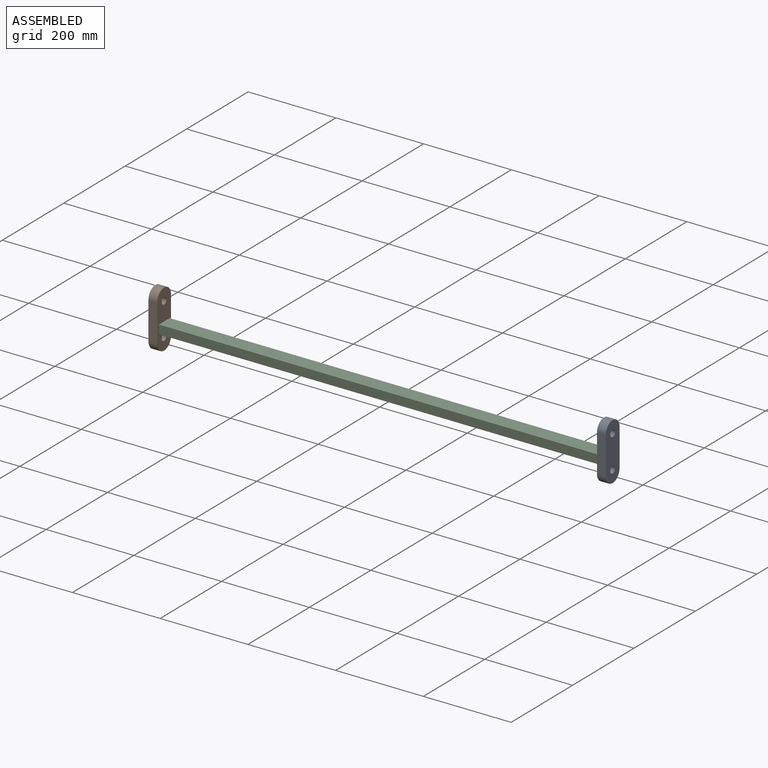
[diagram: assembled view]
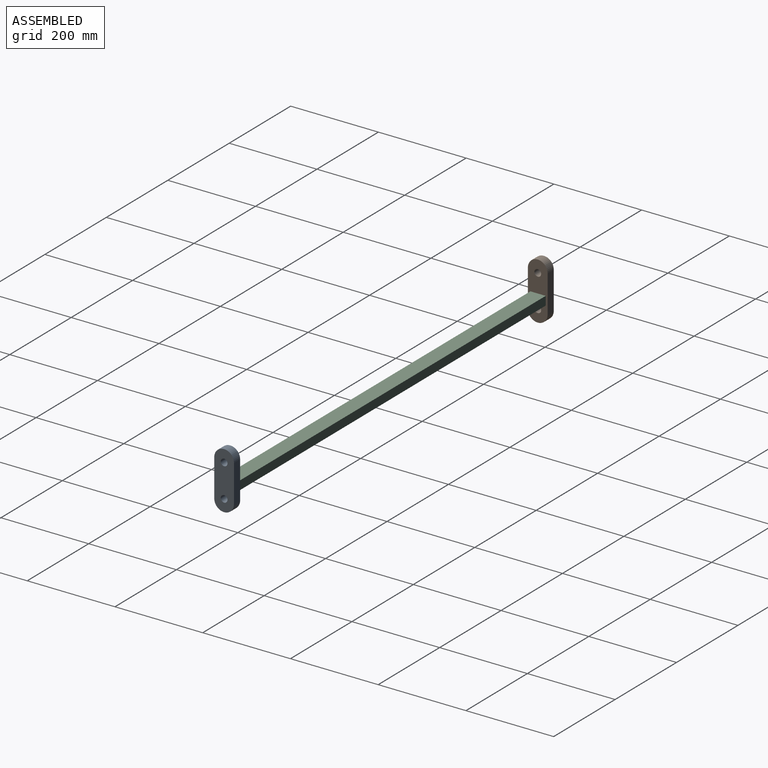
[diagram: assembled view, second angle]
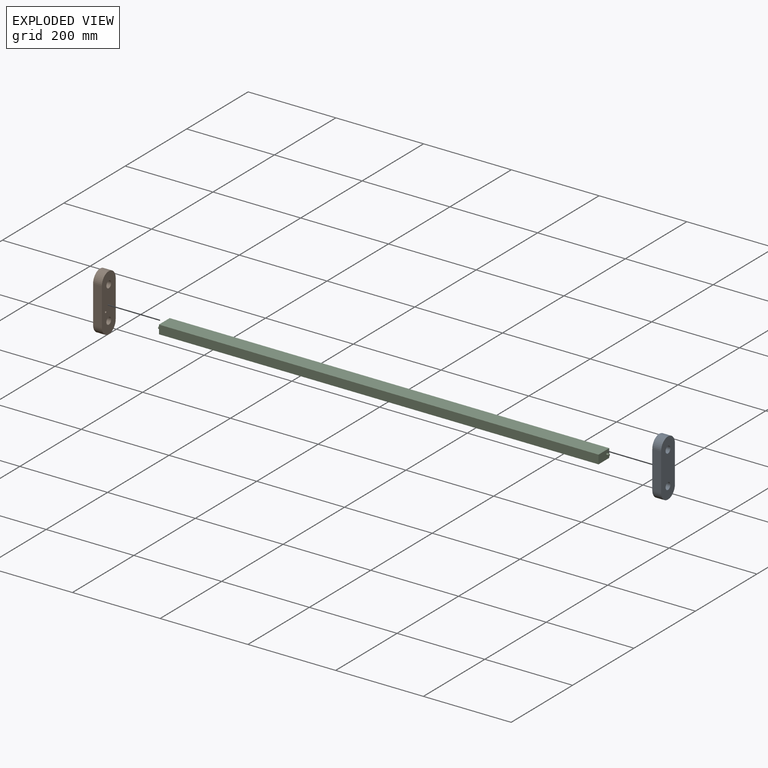
[diagram: exploded view]
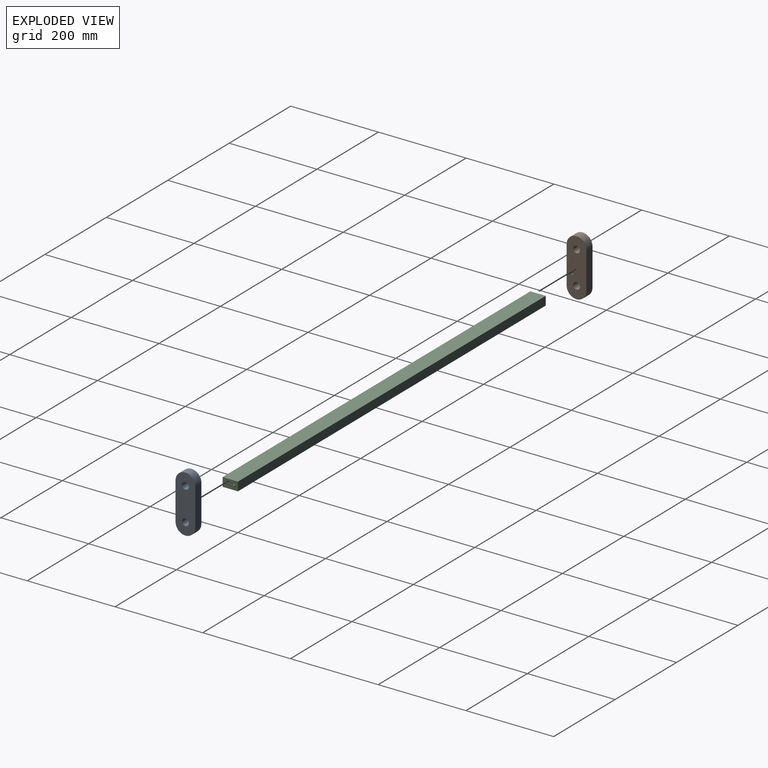
[diagram: exploded view, second angle]
ASSEMBLY  parts=3 mates=2
PART A: 10 faces, bbox 45x20x130 mm
  f0: plane 85x20mm, normal (1,0,0), area 1700mm2, adj f1,f5,f6,f7
  f1: cylinder r=22.5mm len=45mm, axis (0,1,0), area 1413.7mm2, adj f0,f2,f6,f7
  f2: plane 85x20mm, normal (-1,0,0), area 1700mm2, adj f1,f5,f6,f7
  f3: cylinder r=7.75mm len=20mm, axis (0,1,0), area 973.9mm2, adj f6,f7
  f4: cylinder r=7.75mm len=20mm, axis (0,1,0), area 973.9mm2, adj f6,f7
  f5: cylinder r=22.5mm len=45mm, axis (0,1,0), area 1413.7mm2, adj f0,f2,f6,f7
  f6: plane 130x45mm, normal (0,-1,0), area 5038mm2, adj f0,f1,f2,f3,f4,f5
  f7: plane 130x45mm, normal (0,1,0), area 5018.4mm2, adj f0,f1,f2,f3,f4,f5,f8
  f8: cylinder r=2.5mm len=5mm, axis (0,1,0), area 78.5mm2, adj f7,f9
  f9: plane 5x5mm, normal (0,1,0), area 19.6mm2, adj f8
PART B: same geometry as A
PART C: 10 faces, bbox 1012x35x20 mm
  f0: plane 1002x35mm, normal (0,0,1), area 35070mm2, adj f1,f3,f4,f5
  f1: plane 35x20mm, normal (-1,0,0), area 681.1mm2, adj f0,f2,f4,f5,f6
  f2: plane 1002x35mm, normal (0,0,-1), area 35070mm2, adj f1,f3,f4,f5
  f3: plane 35x20mm, normal (1,0,0), area 680.4mm2, adj f0,f2,f4,f5,f8
  f4: plane 1002x20mm, normal (0,-1,0), area 20040mm2, adj f0,f1,f2,f3
  f5: plane 1002x20mm, normal (0,1,0), area 20040mm2, adj f0,f1,f2,f3
  f6: cylinder r=2.45mm len=5mm, axis (1,0,0), area 77mm2, adj f1,f7
  f7: plane 4.9x4.9mm, normal (-1,0,0), area 18.9mm2, adj f6
  f8: cylinder r=2.5mm len=5mm, axis (-1,0,0), area 78.5mm2, adj f3,f9
  f9: plane 5x5mm, normal (1,0,0), area 19.6mm2, adj f8
PLACE A rot(axis=(0,0,1),90deg) t=(-651.46,-53.24,-44.89)mm
PLACE B rot(axis=(0,0,-1),90deg) t=(-1653.46,-53.92,-44.89)mm
PLACE C rot(axis=(0,1,0),180deg) t=(-1152.46,-35.74,-27.31)mm
MATE fastened C.f6 <-> A.f8  axis (1,0,0) through (-651.46,-43.24,-59.89)mm
MATE fastened B.f8 <-> C.f8  axis (1,0,0) through (-1653.46,-63.92,-59.89)mm
